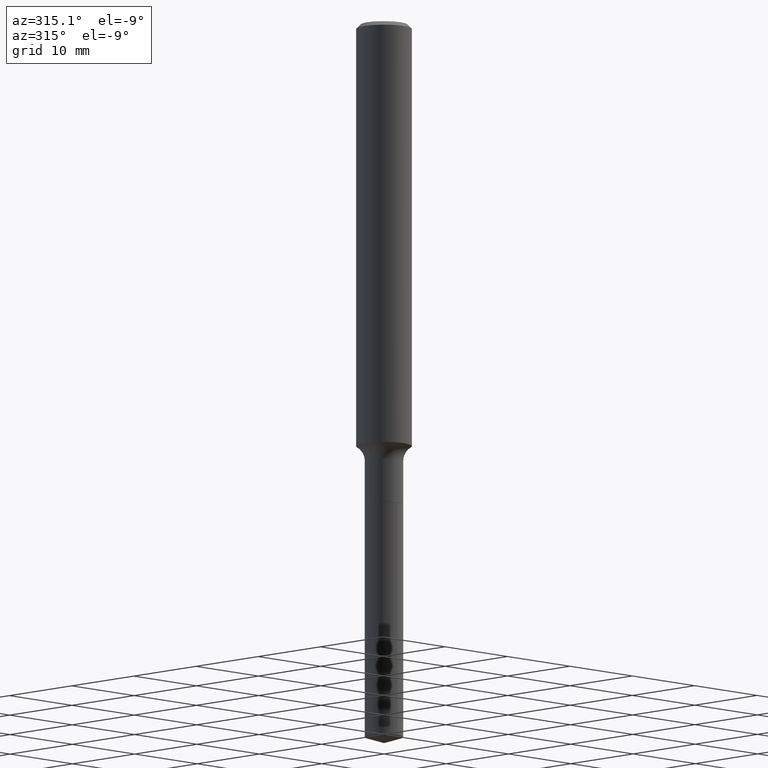
[diagram: clean part render]
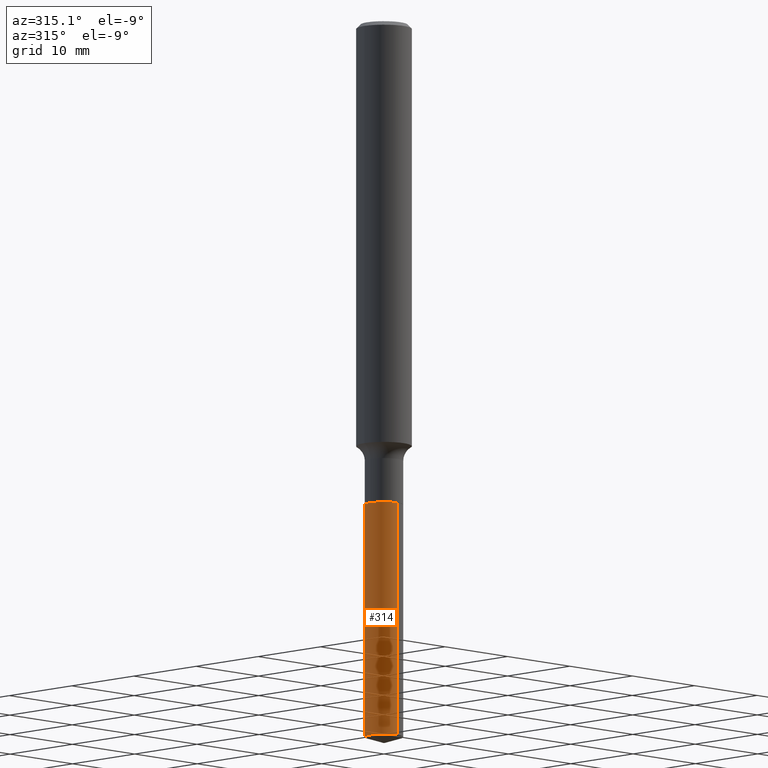
[diagram: same view with one face highlighted and labeled with its STEP entity id]
A machine part, auxiliary view. The second image highlights one B-rep face of the part: STEP entity #314.
In plain terms, the highlighted cylindrical surface (edge-blend (fillet) strip) has radius 2.1831 mm, axis along (-0, 0, 1).
Its self-contained STEP definition (entity closure, byte-faithful):
#31 = AXIS2_PLACEMENT_3D ( 'NONE', #100, #246, #362 ) ;
#33 = CARTESIAN_POINT ( 'NONE',  ( -6.001856421470813725E-16, -0.08595000000000757590, -2.171899999999999498 ) ) ;
#35 = CARTESIAN_POINT ( 'NONE',  ( 6.107114813858590523E-16, 0.08594999999999240747, -2.171899999999999942 ) ) ;
#40 = VERTEX_POINT ( 'NONE', #74 ) ;
#45 = AXIS2_PLACEMENT_3D ( 'NONE', #58, #471, #128 ) ;
#51 = FACE_OUTER_BOUND ( 'NONE', #308, .T. ) ;
#54 = VERTEX_POINT ( 'NONE', #33 ) ;
#58 = CARTESIAN_POINT ( 'NONE',  ( 5.311313700153497401E-29, -7.583148319833427758E-15, -2.171899999999999942 ) ) ;
#74 = CARTESIAN_POINT ( 'NONE',  ( -6.001856421470559317E-16, -0.08595000000001129514, -3.222900069095851805 ) ) ;
#76 = CARTESIAN_POINT ( 'NONE',  ( 6.107114813858851833E-16, 0.08594999999998877149, -3.222900069095853137 ) ) ;
#80 = AXIS2_PLACEMENT_3D ( 'NONE', #360, #180, #439 ) ;
#100 = CARTESIAN_POINT ( 'NONE',  ( 7.881383700020633069E-29, -1.125286426538225716E-14, -3.222900069095852249 ) ) ;
#117 = LINE ( 'NONE', #199, #379 ) ;
#128 = DIRECTION ( 'NONE',  ( -6.982962677686266711E-15, -1.000000000000000000, 3.178415350394722068E-15 ) ) ;
#141 = ORIENTED_EDGE ( 'NONE', *, *, #228, .T. ) ;
#148 = ORIENTED_EDGE ( 'NONE', *, *, #303, .T. ) ;
#173 = CARTESIAN_POINT ( 'NONE',  ( 6.107114813858848875E-16, 0.08594999999999240747, -2.171899999999999942 ) ) ;
#176 = CYLINDRICAL_SURFACE ( 'NONE', #80, 0.08594999999999998475 ) ;
#180 = DIRECTION ( 'NONE',  ( -2.445356642153314140E-29, 3.491641964120695911E-15, 1.000000000000000000 ) ) ;
#183 = ORIENTED_EDGE ( 'NONE', *, *, #454, .F. ) ;
#199 = CARTESIAN_POINT ( 'NONE',  ( -6.001856421470813725E-16, -0.08595000000000757590, -2.171899999999999498 ) ) ;
#228 = EDGE_CURVE ( 'NONE', #40, #54, #117, .T. ) ;
#246 = DIRECTION ( 'NONE',  ( -2.445356642153314140E-29, 3.491641964120695911E-15, 1.000000000000000000 ) ) ;
#259 = ORIENTED_EDGE ( 'NONE', *, *, #378, .F. ) ;
#271 = LINE ( 'NONE', #35, #359 ) ;
#303 = EDGE_CURVE ( 'NONE', #483, #40, #313, .T. ) ;
#308 = EDGE_LOOP ( 'NONE', ( #183, #148, #141, #259 ) ) ;
#313 = CIRCLE ( 'NONE', #31, 0.08594999999999998475 ) ;
#314 = ADVANCED_FACE ( 'NONE', ( #51 ), #176, .T. ) ;
#318 = DIRECTION ( 'NONE',  ( -2.445356642153314420E-29, 3.491641964120695911E-15, 1.000000000000000000 ) ) ;
#329 = VERTEX_POINT ( 'NONE', #173 ) ;
#359 = VECTOR ( 'NONE', #371, 39.37007874015748143 ) ;
#360 = CARTESIAN_POINT ( 'NONE',  ( 5.311313700153497401E-29, -7.583148319833427758E-15, -2.171899999999999942 ) ) ;
#362 = DIRECTION ( 'NONE',  ( -6.982962677686266711E-15, -1.000000000000000000, 6.356830700789444137E-15 ) ) ;
#371 = DIRECTION ( 'NONE',  ( -2.445356642153314420E-29, 3.491641964120695911E-15, 1.000000000000000000 ) ) ;
#378 = EDGE_CURVE ( 'NONE', #329, #54, #484, .T. ) ;
#379 = VECTOR ( 'NONE', #318, 39.37007874015748143 ) ;
#439 = DIRECTION ( 'NONE',  ( -6.982962677686266711E-15, -1.000000000000000000, 3.178415350394722068E-15 ) ) ;
#454 = EDGE_CURVE ( 'NONE', #483, #329, #271, .T. ) ;
#471 = DIRECTION ( 'NONE',  ( -2.445356642153314140E-29, 3.491641964120695911E-15, 1.000000000000000000 ) ) ;
#483 = VERTEX_POINT ( 'NONE', #76 ) ;
#484 = CIRCLE ( 'NONE', #45, 0.08594999999999998475 ) ;